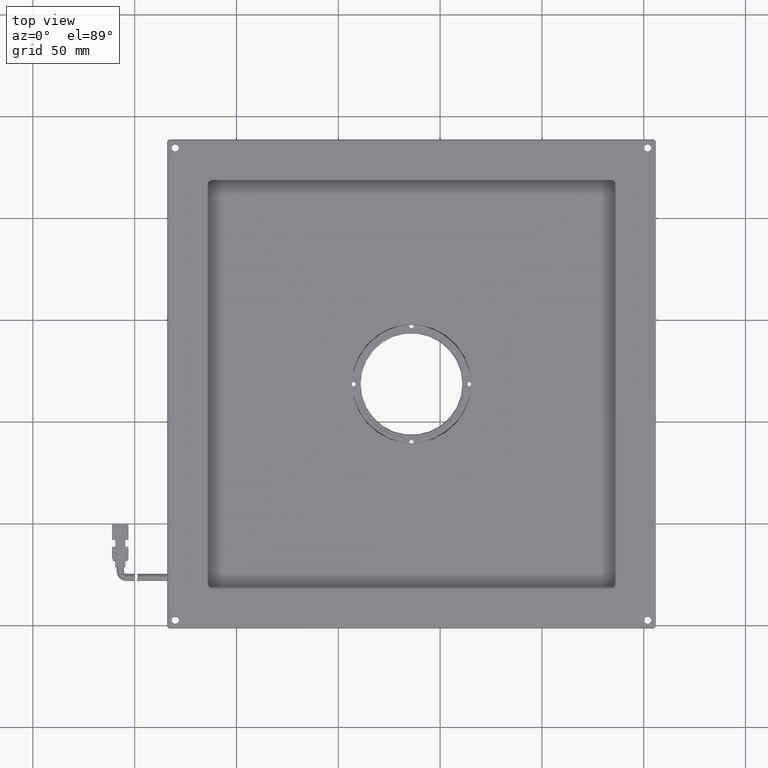
[diagram: clean part render]
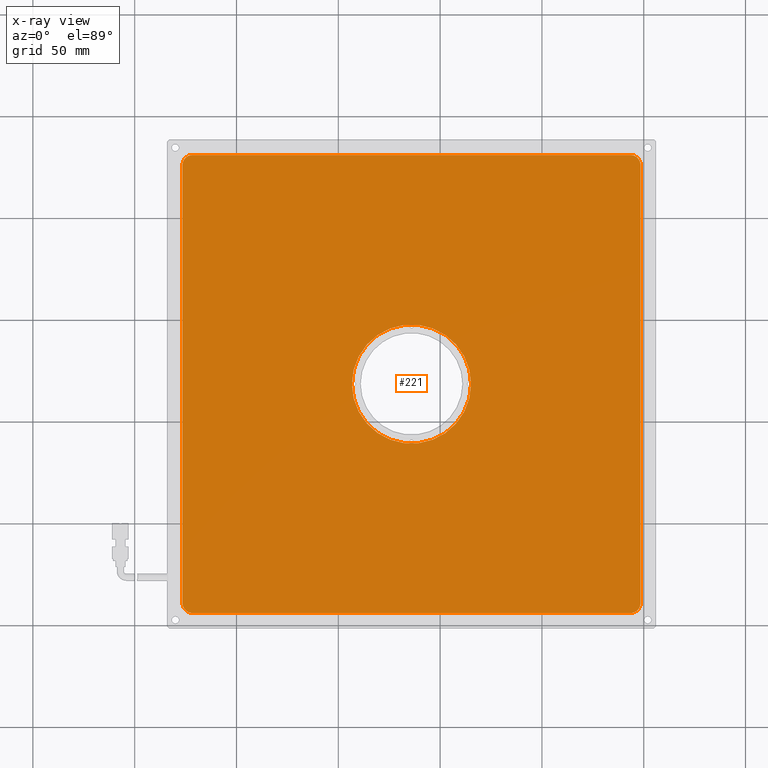
[diagram: x-ray — body ghosted, one internal face saturated and labeled with its STEP entity id]
A machine part, top view, then the same camera in x-ray: the body is ghosted and one INTERNAL B-rep face — a face not visible from any outside direction — is saturated and labeled: STEP entity #221.
In plain terms, the highlighted planar face has unit normal (-0, 0, 1).
Its self-contained STEP definition (entity closure, byte-faithful):
#160 = VECTOR ( 'NONE', #18142, 1000.000000000000000 ) ;
#221 = ADVANCED_FACE ( 'NONE', ( #3110, #6031 ), #11388, .F. ) ;
#690 = CARTESIAN_POINT ( 'NONE',  ( -121.5528944548791400, 131.0437720533321100, -2.999999999999995600 ) ) ;
#713 = EDGE_CURVE ( 'NONE', #3628, #6508, #14787, .T. ) ;
#726 = CARTESIAN_POINT ( 'NONE',  ( -126.5528944548791700, -93.95622794666789400, -2.999999999999995600 ) ) ;
#1410 = AXIS2_PLACEMENT_3D ( 'NONE', #11557, #14976, #4784 ) ;
#1558 = CARTESIAN_POINT ( 'NONE',  ( -126.5528944548791400, -88.95622794666789400, -2.999999999999995600 ) ) ;
#1694 = DIRECTION ( 'NONE',  ( -1.000000000000000000, 0.0000000000000000000, 0.0000000000000000000 ) ) ;
#1998 = CIRCLE ( 'NONE', #7719, 29.25000000000000000 ) ;
#2004 = DIRECTION ( 'NONE',  ( -1.000000000000000000, 0.0000000000000000000, 0.0000000000000000000 ) ) ;
#2246 = DIRECTION ( 'NONE',  ( -1.000000000000000000, 0.0000000000000000000, 0.0000000000000000000 ) ) ;
#2614 = LINE ( 'NONE', #726, #10060 ) ;
#2931 = LINE ( 'NONE', #16047, #9574 ) ;
#3110 = FACE_OUTER_BOUND ( 'NONE', #19505, .T. ) ;
#3212 = ORIENTED_EDGE ( 'NONE', *, *, #9669, .F. ) ;
#3628 = VERTEX_POINT ( 'NONE', #13142 ) ;
#3723 = EDGE_CURVE ( 'NONE', #12643, #7875, #17697, .T. ) ;
#4075 = DIRECTION ( 'NONE',  ( 1.000000000000000000, 0.0000000000000000000, 0.0000000000000000000 ) ) ;
#4084 = ORIENTED_EDGE ( 'NONE', *, *, #17874, .F. ) ;
#4086 = DIRECTION ( 'NONE',  ( 0.0000000000000000000, 1.000000000000000000, -0.0000000000000000000 ) ) ;
#4598 = CARTESIAN_POINT ( 'NONE',  ( -126.5528944548791400, 131.0437720533321100, -2.999999999999995600 ) ) ;
#4784 = DIRECTION ( 'NONE',  ( -1.000000000000000000, 0.0000000000000000000, 0.0000000000000000000 ) ) ;
#5163 = EDGE_CURVE ( 'NONE', #15872, #3628, #15140, .T. ) ;
#5819 = CIRCLE ( 'NONE', #7044, 5.000000000000004400 ) ;
#6031 = FACE_BOUND ( 'NONE', #16887, .T. ) ;
#6130 = CARTESIAN_POINT ( 'NONE',  ( -14.05289445487915900, 18.54377205333211600, -2.999999999999995600 ) ) ;
#6162 = ORIENTED_EDGE ( 'NONE', *, *, #5163, .F. ) ;
#6172 = AXIS2_PLACEMENT_3D ( 'NONE', #10371, #20742, #2004 ) ;
#6216 = VERTEX_POINT ( 'NONE', #6557 ) ;
#6508 = VERTEX_POINT ( 'NONE', #690 ) ;
#6557 = CARTESIAN_POINT ( 'NONE',  ( 98.44710554512089100, -88.95622794666790900, -2.999999999999995600 ) ) ;
#6585 = DIRECTION ( 'NONE',  ( -0.0000000000000000000, -0.0000000000000000000, 1.000000000000000000 ) ) ;
#6613 = VERTEX_POINT ( 'NONE', #21412 ) ;
#6830 = ORIENTED_EDGE ( 'NONE', *, *, #20908, .F. ) ;
#6862 = CARTESIAN_POINT ( 'NONE',  ( 98.44710554512086300, 126.0437720533321200, -2.999999999999995600 ) ) ;
#6917 = EDGE_CURVE ( 'NONE', #12237, #6613, #1998, .T. ) ;
#7044 = AXIS2_PLACEMENT_3D ( 'NONE', #13209, #6585, #14967 ) ;
#7562 = AXIS2_PLACEMENT_3D ( 'NONE', #17837, #12427, #2246 ) ;
#7696 = VECTOR ( 'NONE', #4086, 1000.000000000000000 ) ;
#7719 = AXIS2_PLACEMENT_3D ( 'NONE', #10137, #11859, #1694 ) ;
#7875 = VERTEX_POINT ( 'NONE', #15954 ) ;
#7982 = DIRECTION ( 'NONE',  ( -0.0000000000000000000, -0.0000000000000000000, -1.000000000000000000 ) ) ;
#9099 = ORIENTED_EDGE ( 'NONE', *, *, #3723, .F. ) ;
#9574 = VECTOR ( 'NONE', #4075, 1000.000000000000000 ) ;
#9591 = DIRECTION ( 'NONE',  ( -1.000000000000000000, 0.0000000000000000000, 0.0000000000000000000 ) ) ;
#9657 = DIRECTION ( 'NONE',  ( 1.000000000000000000, 0.0000000000000000000, 0.0000000000000000000 ) ) ;
#9669 = EDGE_CURVE ( 'NONE', #14387, #12643, #2614, .T. ) ;
#10060 = VECTOR ( 'NONE', #12686, 1000.000000000000000 ) ;
#10117 = CARTESIAN_POINT ( 'NONE',  ( 93.44710554512087700, -93.95622794666790900, -2.999999999999995600 ) ) ;
#10137 = CARTESIAN_POINT ( 'NONE',  ( -14.05289445487915900, 18.54377205333211600, -2.999999999999995600 ) ) ;
#10371 = CARTESIAN_POINT ( 'NONE',  ( 93.44710554512082000, 126.0437720533321200, -2.999999999999995600 ) ) ;
#11388 = PLANE ( 'NONE',  #20959 ) ;
#11557 = CARTESIAN_POINT ( 'NONE',  ( -121.5528944548791100, -88.95622794666789400, -2.999999999999995600 ) ) ;
#11731 = CARTESIAN_POINT ( 'NONE',  ( 15.19710554512084300, 18.54377205333212000, -2.999999999999995600 ) ) ;
#11859 = DIRECTION ( 'NONE',  ( -0.0000000000000000000, -0.0000000000000000000, -1.000000000000000000 ) ) ;
#12237 = VERTEX_POINT ( 'NONE', #11731 ) ;
#12427 = DIRECTION ( 'NONE',  ( -0.0000000000000000000, -0.0000000000000000000, 1.000000000000000000 ) ) ;
#12643 = VERTEX_POINT ( 'NONE', #1558 ) ;
#12686 = DIRECTION ( 'NONE',  ( -0.0000000000000000000, -1.000000000000000000, 0.0000000000000000000 ) ) ;
#13142 = CARTESIAN_POINT ( 'NONE',  ( 93.44710554512082000, 131.0437720533321100, -2.999999999999995600 ) ) ;
#13209 = CARTESIAN_POINT ( 'NONE',  ( 93.44710554512087700, -88.95622794666790900, -2.999999999999995600 ) ) ;
#13558 = EDGE_CURVE ( 'NONE', #6508, #14387, #16772, .T. ) ;
#14022 = ORIENTED_EDGE ( 'NONE', *, *, #6917, .F. ) ;
#14095 = ORIENTED_EDGE ( 'NONE', *, *, #13558, .F. ) ;
#14167 = EDGE_CURVE ( 'NONE', #6613, #12237, #20905, .T. ) ;
#14387 = VERTEX_POINT ( 'NONE', #18678 ) ;
#14659 = CARTESIAN_POINT ( 'NONE',  ( -126.5528944548791400, -93.95622794666789400, -2.999999999999995600 ) ) ;
#14679 = ORIENTED_EDGE ( 'NONE', *, *, #14167, .F. ) ;
#14787 = LINE ( 'NONE', #4598, #160 ) ;
#14967 = DIRECTION ( 'NONE',  ( -1.000000000000000000, 0.0000000000000000000, 0.0000000000000000000 ) ) ;
#14976 = DIRECTION ( 'NONE',  ( 0.0000000000000000000, -0.0000000000000000000, 1.000000000000000000 ) ) ;
#15140 = CIRCLE ( 'NONE', #6172, 5.000000000000004400 ) ;
#15872 = VERTEX_POINT ( 'NONE', #6862 ) ;
#15954 = CARTESIAN_POINT ( 'NONE',  ( -121.5528944548791100, -93.95622794666789400, -2.999999999999995600 ) ) ;
#16047 = CARTESIAN_POINT ( 'NONE',  ( -126.5528944548791400, -93.95622794666789400, -2.999999999999995600 ) ) ;
#16749 = LINE ( 'NONE', #17632, #7696 ) ;
#16772 = CIRCLE ( 'NONE', #7562, 4.999999999999990200 ) ;
#16887 = EDGE_LOOP ( 'NONE', ( #14679, #14022 ) ) ;
#17632 = CARTESIAN_POINT ( 'NONE',  ( 98.44710554512089100, -93.95622794666789400, -2.999999999999995600 ) ) ;
#17697 = CIRCLE ( 'NONE', #1410, 4.999999999999990200 ) ;
#17837 = CARTESIAN_POINT ( 'NONE',  ( -121.5528944548791400, 126.0437720533321200, -2.999999999999995600 ) ) ;
#17874 = EDGE_CURVE ( 'NONE', #6216, #15872, #16749, .T. ) ;
#18142 = DIRECTION ( 'NONE',  ( -1.000000000000000000, -0.0000000000000000000, -0.0000000000000000000 ) ) ;
#18678 = CARTESIAN_POINT ( 'NONE',  ( -126.5528944548791700, 126.0437720533321200, -2.999999999999995600 ) ) ;
#18729 = ORIENTED_EDGE ( 'NONE', *, *, #20222, .F. ) ;
#19463 = VERTEX_POINT ( 'NONE', #10117 ) ;
#19505 = EDGE_LOOP ( 'NONE', ( #6830, #18729, #9099, #3212, #14095, #20543, #6162, #4084 ) ) ;
#19858 = DIRECTION ( 'NONE',  ( -0.0000000000000000000, 0.0000000000000000000, 1.000000000000000000 ) ) ;
#20222 = EDGE_CURVE ( 'NONE', #7875, #19463, #2931, .T. ) ;
#20366 = AXIS2_PLACEMENT_3D ( 'NONE', #6130, #7982, #9591 ) ;
#20543 = ORIENTED_EDGE ( 'NONE', *, *, #713, .F. ) ;
#20742 = DIRECTION ( 'NONE',  ( -0.0000000000000000000, -0.0000000000000000000, 1.000000000000000000 ) ) ;
#20905 = CIRCLE ( 'NONE', #20366, 29.25000000000000000 ) ;
#20908 = EDGE_CURVE ( 'NONE', #19463, #6216, #5819, .T. ) ;
#20959 = AXIS2_PLACEMENT_3D ( 'NONE', #14659, #19858, #9657 ) ;
#21412 = CARTESIAN_POINT ( 'NONE',  ( -43.30289445487915900, 18.54377205333211600, -2.999999999999995600 ) ) ;